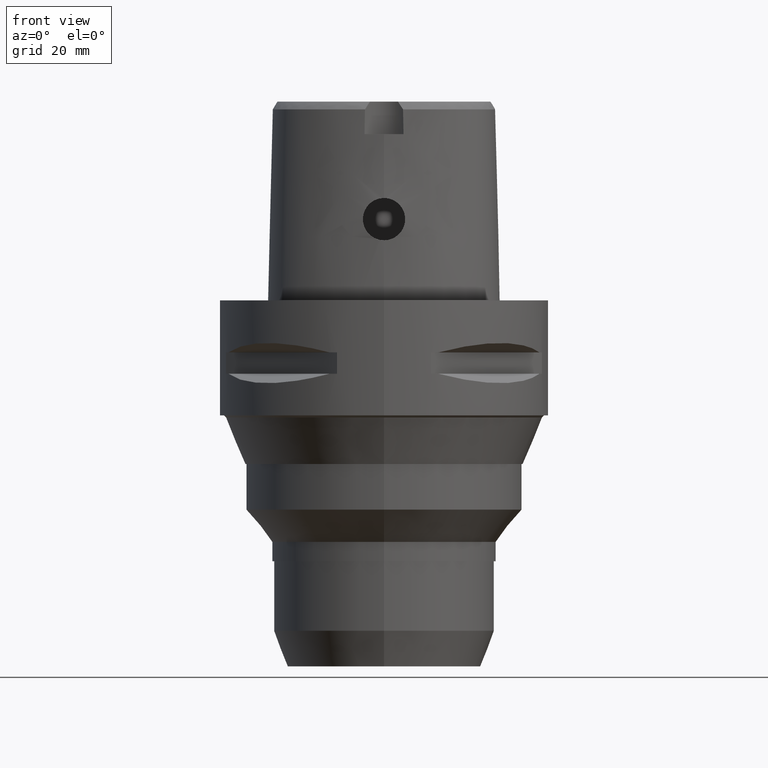
[diagram: clean part render]
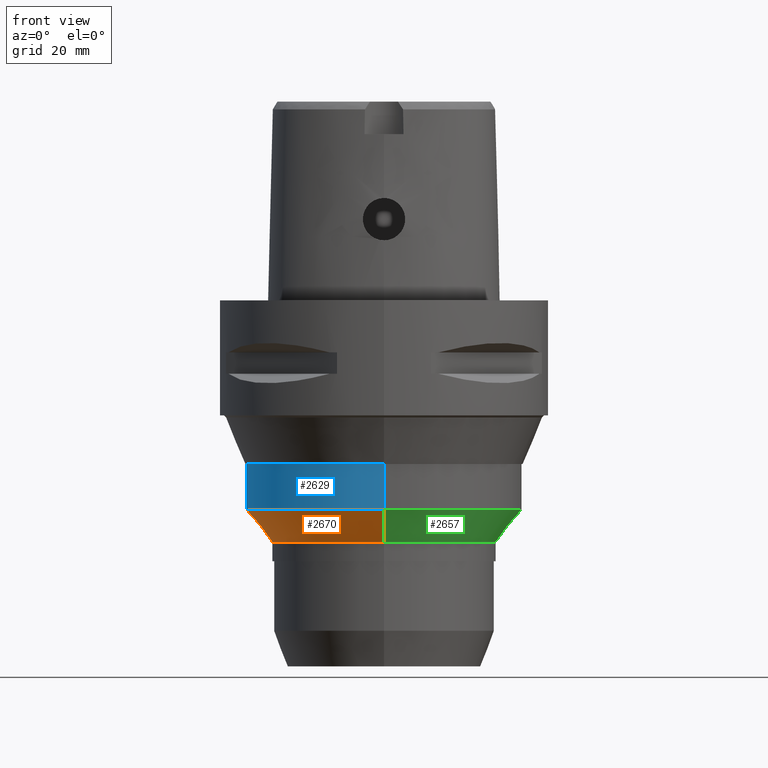
[diagram: same view with three faces highlighted in distinct colors, each labeled with its STEP entity id]
A machine part, front view with three faces highlighted in distinct colors.
Their STEP definitions:

[orange] entity #2670 — the highlighted conical surface has half-angle 38.7 deg.
#637=DIRECTION('',(0.E0,-6.252426563356E-1,-7.804304073384E-1));
#638=VECTOR('',#637,7.916926252299E0);
#639=CARTESIAN_POINT('',(0.E0,2.63E1,-4.002139002005E1));
#640=LINE('',#639,#638);
#660=CARTESIAN_POINT('',(0.E0,0.E0,-4.002139002005E1));
#661=DIRECTION('',(0.E0,0.E0,1.E0));
#662=DIRECTION('',(0.E0,1.E0,0.E0));
#663=AXIS2_PLACEMENT_3D('',#660,#661,#662);
#668=DIRECTION('',(0.E0,6.252426563356E-1,-7.804304073384E-1));
#669=VECTOR('',#668,7.916926252299E0);
#670=CARTESIAN_POINT('',(0.E0,-2.63E1,-4.002139002005E1));
#671=LINE('',#670,#669);
#675=CARTESIAN_POINT('',(0.E0,0.E0,-4.62E1));
#676=DIRECTION('',(0.E0,0.E0,-1.E0));
#677=DIRECTION('',(0.E0,-1.E0,0.E0));
#678=AXIS2_PLACEMENT_3D('',#675,#676,#677);
#1660=CARTESIAN_POINT('',(0.E0,2.63E1,-4.002139002005E1));
#1661=VERTEX_POINT('',#1660);
#1662=CARTESIAN_POINT('',(0.E0,-2.63E1,-4.002139002005E1));
#1663=VERTEX_POINT('',#1662);
#1664=CARTESIAN_POINT('',(0.E0,2.135E1,-4.62E1));
#1665=VERTEX_POINT('',#1664);
#1666=CARTESIAN_POINT('',(0.E0,-2.135E1,-4.62E1));
#1667=VERTEX_POINT('',#1666);
#2658=CARTESIAN_POINT('',(0.E0,0.E0,-4.311069501003E1));
#2659=DIRECTION('',(0.E0,0.E0,1.E0));
#2660=DIRECTION('',(0.E0,1.E0,0.E0));
#2661=AXIS2_PLACEMENT_3D('',#2658,#2659,#2660);
#2662=CONICAL_SURFACE('',#2661,2.3825E1,3.87E1);
#2663=ORIENTED_EDGE('',*,*,#2648,.F.);
#2664=ORIENTED_EDGE('',*,*,#2625,.T.);
#2665=ORIENTED_EDGE('',*,*,#2652,.T.);
#2667=ORIENTED_EDGE('',*,*,#2666,.T.);
#2668=EDGE_LOOP('',(#2663,#2664,#2665,#2667));
#2669=FACE_OUTER_BOUND('',#2668,.F.);
#664=CIRCLE('',#663,2.63E1);
#679=CIRCLE('',#678,2.135E1);
#2625=EDGE_CURVE('',#1661,#1663,#664,.T.);
#2648=EDGE_CURVE('',#1661,#1665,#640,.T.);
#2652=EDGE_CURVE('',#1663,#1667,#671,.T.);
#2666=EDGE_CURVE('',#1667,#1665,#679,.T.);
#2670=ADVANCED_FACE('',(#2669),#2662,.T.);

[blue] entity #2629 — the highlighted cylindrical surface (partial cylindrical patch) has radius 26.3 mm, axis along (0, 0, -1).
#607=CARTESIAN_POINT('',(0.E0,1.267509437118E-14,-3.13E1));
#608=DIRECTION('',(0.E0,0.E0,-1.E0));
#609=DIRECTION('',(0.E0,-1.E0,0.E0));
#610=AXIS2_PLACEMENT_3D('',#607,#608,#609);
#623=DIRECTION('',(0.E0,-1.735338086807E-13,-1.E0));
#624=VECTOR('',#623,8.721390020051E0);
#625=CARTESIAN_POINT('',(0.E0,-2.63E1,-3.13E1));
#626=LINE('',#625,#624);
#630=DIRECTION('',(0.E0,1.727190959639E-13,-1.E0));
#631=VECTOR('',#630,8.721390020051E0);
#632=CARTESIAN_POINT('',(0.E0,2.63E1,-3.13E1));
#633=LINE('',#632,#631);
#660=CARTESIAN_POINT('',(0.E0,0.E0,-4.002139002005E1));
#661=DIRECTION('',(0.E0,0.E0,1.E0));
#662=DIRECTION('',(0.E0,1.E0,0.E0));
#663=AXIS2_PLACEMENT_3D('',#660,#661,#662);
#1656=CARTESIAN_POINT('',(0.E0,-2.63E1,-3.13E1));
#1657=CARTESIAN_POINT('',(0.E0,2.63E1,-3.13E1));
#1658=VERTEX_POINT('',#1656);
#1659=VERTEX_POINT('',#1657);
#1660=CARTESIAN_POINT('',(0.E0,2.63E1,-4.002139002005E1));
#1661=VERTEX_POINT('',#1660);
#1662=CARTESIAN_POINT('',(0.E0,-2.63E1,-4.002139002005E1));
#1663=VERTEX_POINT('',#1662);
#2615=CARTESIAN_POINT('',(0.E0,1.267509437118E-14,3.5E0));
#2616=DIRECTION('',(0.E0,0.E0,-1.E0));
#2617=DIRECTION('',(0.E0,-1.E0,0.E0));
#2618=AXIS2_PLACEMENT_3D('',#2615,#2616,#2617);
#2619=CYLINDRICAL_SURFACE('',#2618,2.63E1);
#2621=ORIENTED_EDGE('',*,*,#2620,.F.);
#2622=ORIENTED_EDGE('',*,*,#2608,.F.);
#2624=ORIENTED_EDGE('',*,*,#2623,.T.);
#2626=ORIENTED_EDGE('',*,*,#2625,.F.);
#2627=EDGE_LOOP('',(#2621,#2622,#2624,#2626));
#2628=FACE_OUTER_BOUND('',#2627,.F.);
#611=CIRCLE('',#610,2.63E1);
#664=CIRCLE('',#663,2.63E1);
#2608=EDGE_CURVE('',#1658,#1659,#611,.T.);
#2620=EDGE_CURVE('',#1659,#1661,#633,.T.);
#2623=EDGE_CURVE('',#1658,#1663,#626,.T.);
#2625=EDGE_CURVE('',#1661,#1663,#664,.T.);
#2629=ADVANCED_FACE('',(#2628),#2619,.T.);

[green] entity #2657 — the highlighted conical surface has half-angle 38.7 deg.
#637=DIRECTION('',(0.E0,-6.252426563356E-1,-7.804304073384E-1));
#638=VECTOR('',#637,7.916926252299E0);
#639=CARTESIAN_POINT('',(0.E0,2.63E1,-4.002139002005E1));
#640=LINE('',#639,#638);
#644=CARTESIAN_POINT('',(0.E0,0.E0,-4.62E1));
#645=DIRECTION('',(0.E0,0.E0,-1.E0));
#646=DIRECTION('',(0.E0,1.E0,0.E0));
#647=AXIS2_PLACEMENT_3D('',#644,#645,#646);
#652=CARTESIAN_POINT('',(0.E0,0.E0,-4.002139002005E1));
#653=DIRECTION('',(0.E0,0.E0,1.E0));
#654=DIRECTION('',(0.E0,-1.E0,0.E0));
#655=AXIS2_PLACEMENT_3D('',#652,#653,#654);
#668=DIRECTION('',(0.E0,6.252426563356E-1,-7.804304073384E-1));
#669=VECTOR('',#668,7.916926252299E0);
#670=CARTESIAN_POINT('',(0.E0,-2.63E1,-4.002139002005E1));
#671=LINE('',#670,#669);
#1660=CARTESIAN_POINT('',(0.E0,2.63E1,-4.002139002005E1));
#1661=VERTEX_POINT('',#1660);
#1662=CARTESIAN_POINT('',(0.E0,-2.63E1,-4.002139002005E1));
#1663=VERTEX_POINT('',#1662);
#1664=CARTESIAN_POINT('',(0.E0,2.135E1,-4.62E1));
#1665=VERTEX_POINT('',#1664);
#1666=CARTESIAN_POINT('',(0.E0,-2.135E1,-4.62E1));
#1667=VERTEX_POINT('',#1666);
#2643=CARTESIAN_POINT('',(0.E0,0.E0,-4.311069501003E1));
#2644=DIRECTION('',(0.E0,0.E0,1.E0));
#2645=DIRECTION('',(0.E0,1.E0,0.E0));
#2646=AXIS2_PLACEMENT_3D('',#2643,#2644,#2645);
#2647=CONICAL_SURFACE('',#2646,2.3825E1,3.87E1);
#2649=ORIENTED_EDGE('',*,*,#2648,.T.);
#2651=ORIENTED_EDGE('',*,*,#2650,.T.);
#2653=ORIENTED_EDGE('',*,*,#2652,.F.);
#2654=ORIENTED_EDGE('',*,*,#2636,.T.);
#2655=EDGE_LOOP('',(#2649,#2651,#2653,#2654));
#2656=FACE_OUTER_BOUND('',#2655,.F.);
#648=CIRCLE('',#647,2.135E1);
#656=CIRCLE('',#655,2.63E1);
#2636=EDGE_CURVE('',#1663,#1661,#656,.T.);
#2648=EDGE_CURVE('',#1661,#1665,#640,.T.);
#2650=EDGE_CURVE('',#1665,#1667,#648,.T.);
#2652=EDGE_CURVE('',#1663,#1667,#671,.T.);
#2657=ADVANCED_FACE('',(#2656),#2647,.T.);